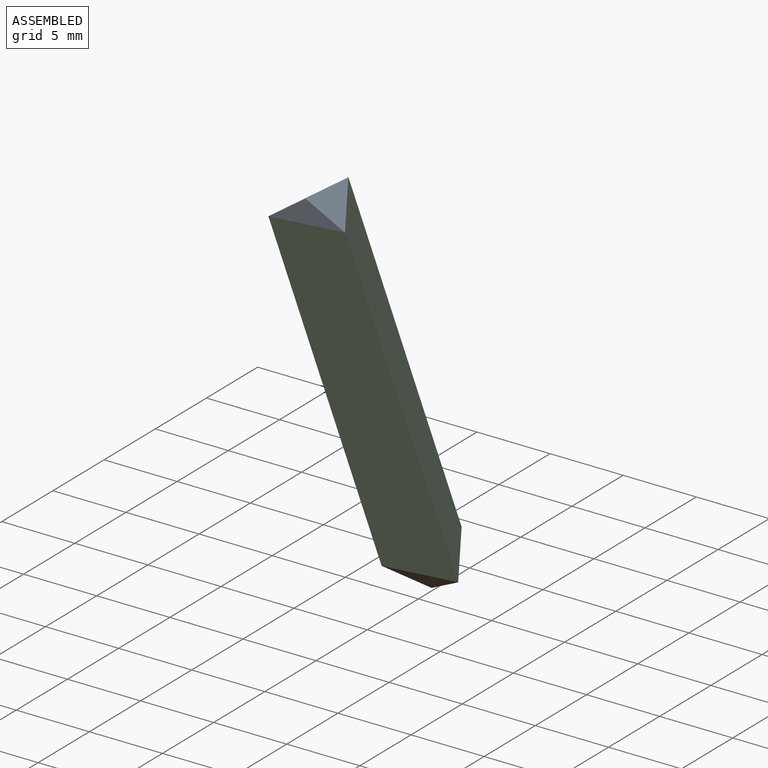
[diagram: assembled view]
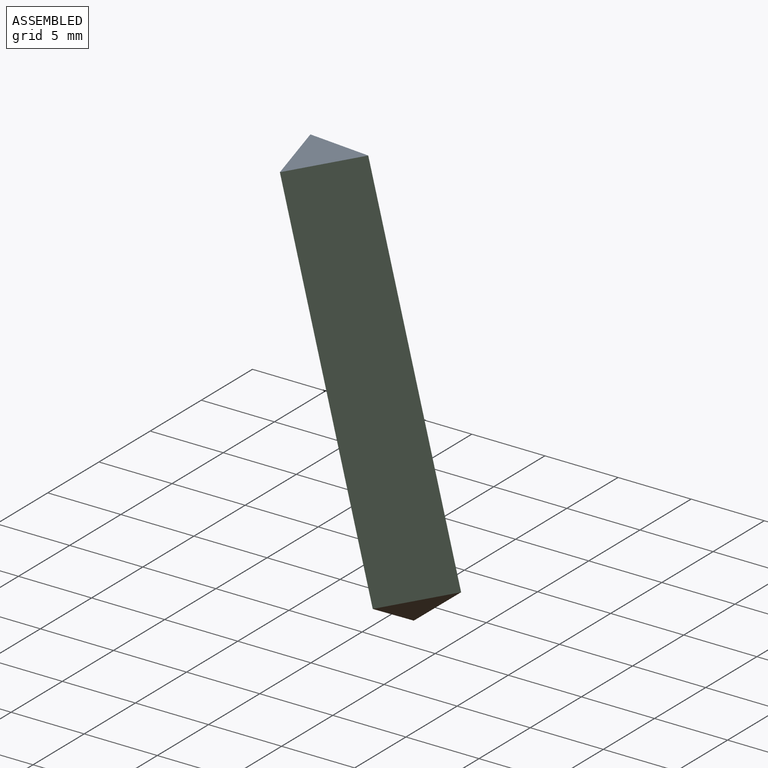
[diagram: assembled view, second angle]
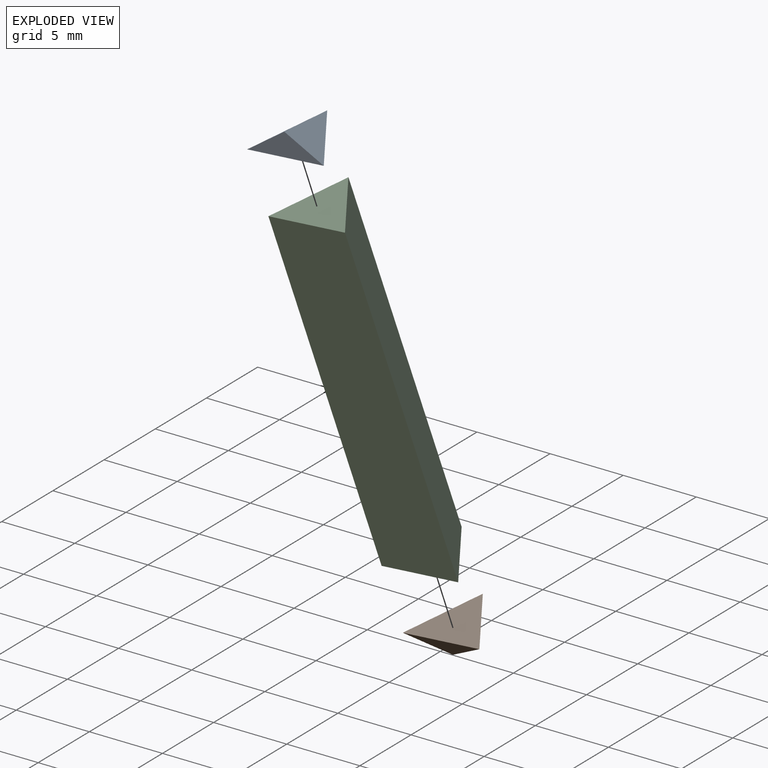
[diagram: exploded view]
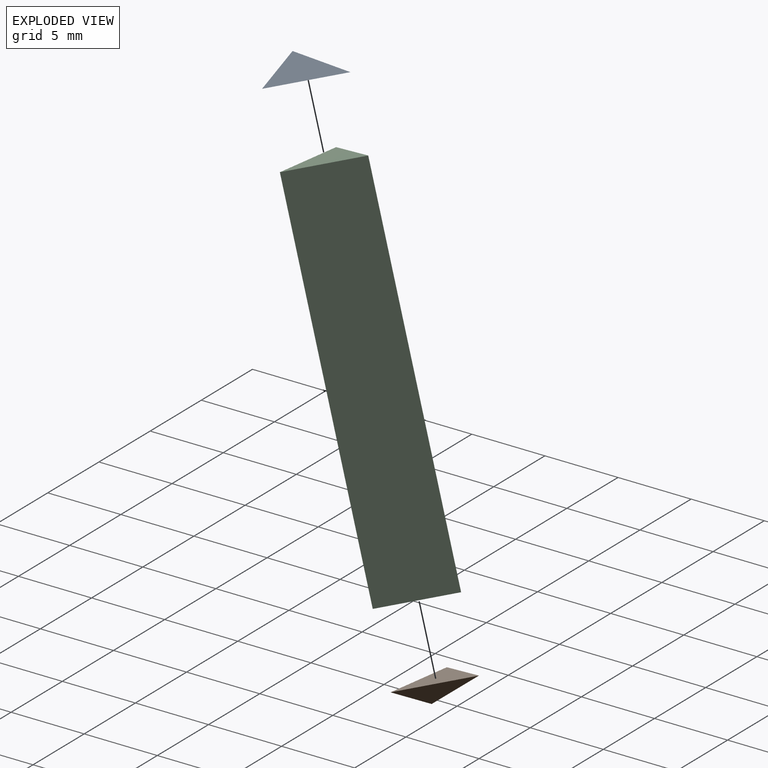
[diagram: exploded view, second angle]
ASSEMBLY  parts=3 mates=2
PART A: 4 faces, bbox 5.3x1.5x4 mm
  f0: plane 5.34x1.54mm, normal (0,0,-1), area 4.1mm2, adj f1,f2,f3
  f1: plane 4.04x2.67mm, normal (0.5,0.87,0), area 6.2mm2, adj f0,f2,f3
  f2: plane 4.04x2.67mm, normal (-0.5,0.87,0), area 6.2mm2, adj f0,f1,f3
  f3: plane 5.34x4.04mm, normal (0,-0.93,0.36), area 11.5mm2, adj f0,f1,f2
PART B: same geometry as A
PART C: 5 faces, bbox 5.3x4.3x25.4 mm
  f0: plane 25.4x4.32mm, normal (0.85,0.53,0), area 129mm2, adj f1,f2,f3,f4
  f1: plane 25.4x4.32mm, normal (-0.85,0.53,0), area 129mm2, adj f0,f2,f3,f4
  f2: plane 25.4x5.34mm, normal (0,-1,0), area 135.7mm2, adj f0,f1,f3,f4
  f3: plane 5.34x4.32mm, normal (0,0,1), area 11.5mm2, adj f0,f1,f2
  f4: plane 5.34x4.32mm, normal (0,0,-1), area 11.5mm2, adj f0,f1,f2
PLACE A rot(axis=(-0.02,0.72,0.69),175.6deg) t=(-11.47,13.94,11.78)mm
PLACE B rot(axis=(-0.99,-0.08,-0.07),51.1deg) t=(-9.01,22.74,-14.98)mm
PLACE C rot(axis=(0.96,-0.26,-0.03),18.8deg) t=(-9.15,25.87,-12.44)mm
MATE fastened C.f3 <-> A.f3  axis (-0.09,-0.31,0.95) through (-11.35,15.23,10.7)mm
MATE fastened C.f4 <-> B.f3  axis (0.09,0.31,-0.95) through (-9.14,23.13,-13.34)mm
